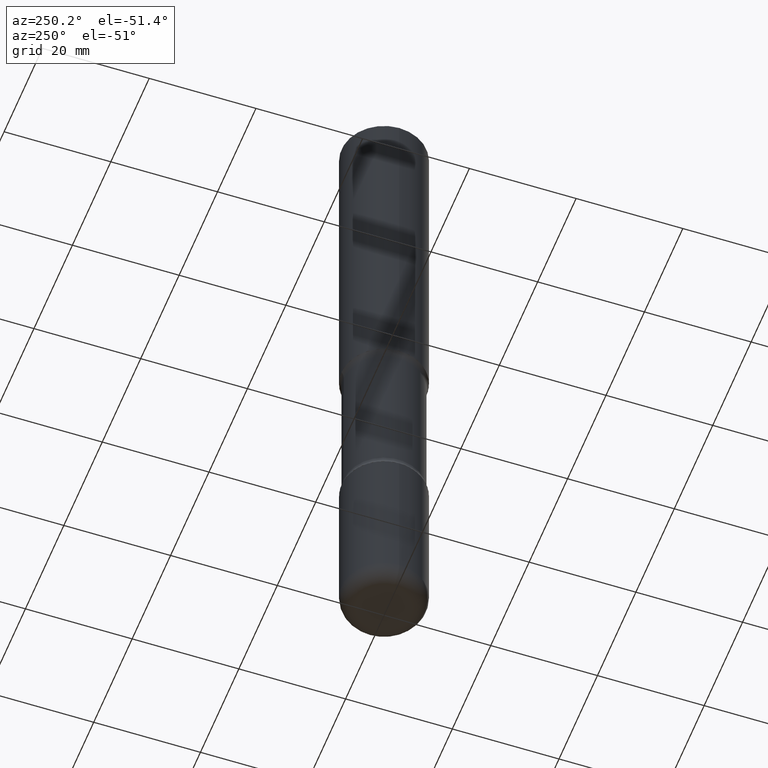
[diagram: clean part render]
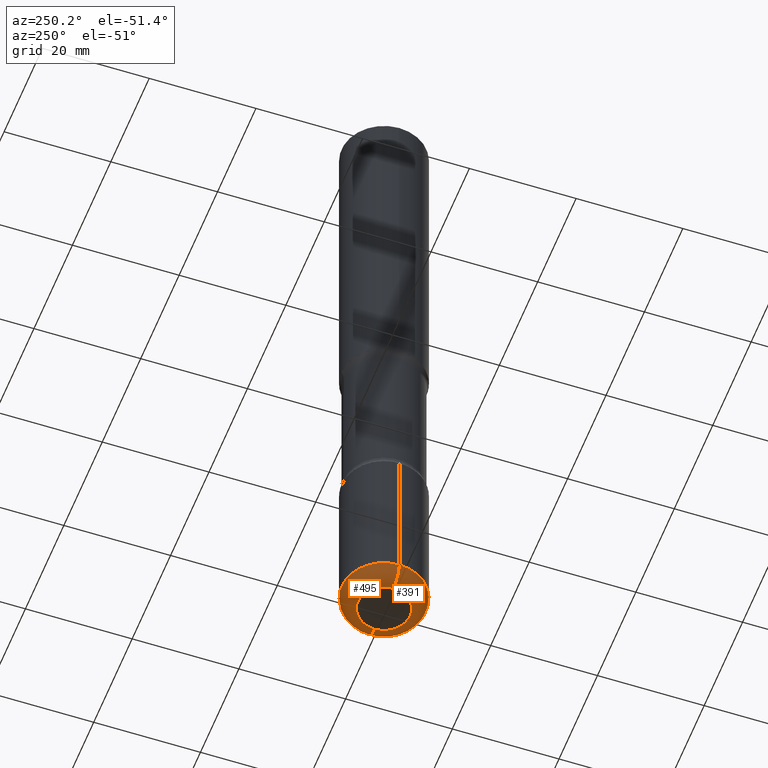
[diagram: same view with one multi-face feature highlighted, each face labeled with its STEP entity id]
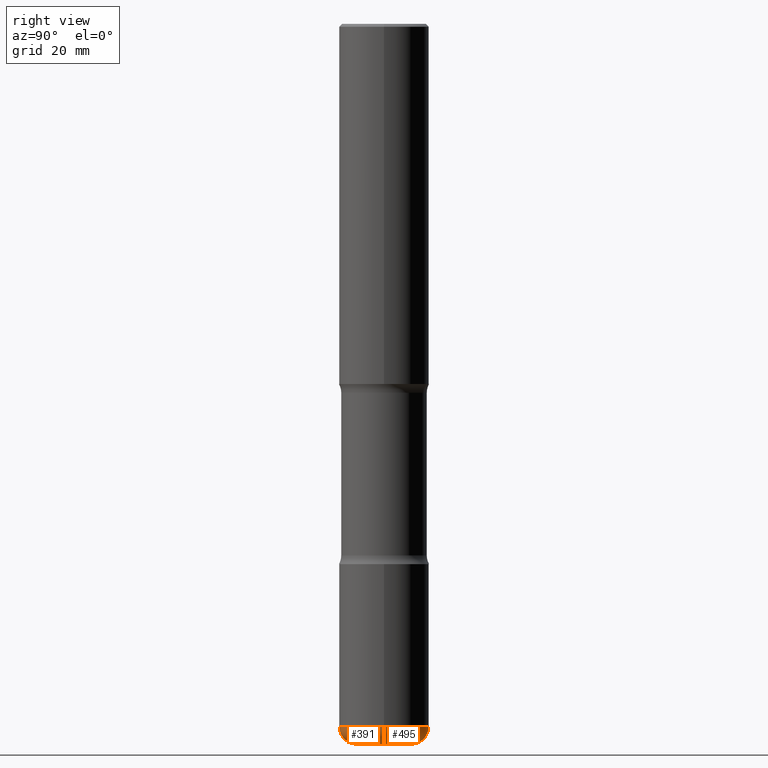
[diagram: same view with one multi-face feature highlighted, each face labeled with its STEP entity id]
A machine part, auxiliary view. The highlighted faces form ONE feature: a constant-radius fillet chain: 2 tangent blend faces with common blend radius 3.048 mm. The faces share edges in the B-rep.
A second angle (right view) of the same feature is appended — it is thin or edge-on in the first view.
Their STEP definitions:
[1] entity #391 (Torus):
#9 = DIRECTION ( 'NONE',  ( 7.105427357601001859E-15, 1.000000000000000000, -3.491481338843145583E-15 ) ) ;
#29 = DIRECTION ( 'NONE',  ( -2.445468806185136597E-29, 3.491481338843145583E-15, 1.000000000000000000 ) ) ;
#31 = DIRECTION ( 'NONE',  ( -2.445468806185136597E-29, 3.491481338843145583E-15, 1.000000000000000000 ) ) ;
#36 = DIRECTION ( 'NONE',  ( 1.000000000000000000, -6.982962677686258822E-15, 0.000000000000000000 ) ) ;
#39 = CARTESIAN_POINT ( 'NONE',  ( -0.1925000000000002820, -1.545379740609088424E-14, -5.000000000000000000 ) ) ;
#82 = EDGE_CURVE ( 'NONE', #444, #208, #273, .T. ) ;
#84 = VERTEX_POINT ( 'NONE', #451 ) ;
#90 = FACE_OUTER_BOUND ( 'NONE', #432, .T. ) ;
#94 = VERTEX_POINT ( 'NONE', #39 ) ;
#106 = CIRCLE ( 'NONE', #500, 0.1925000000000002820 ) ;
#109 = EDGE_CURVE ( 'NONE', #84, #208, #355, .T. ) ;
#112 = DIRECTION ( 'NONE',  ( -6.982962677686266711E-15, -1.000000000000000000, 3.491481338843145583E-15 ) ) ;
#114 = AXIS2_PLACEMENT_3D ( 'NONE', #367, #112, #280 ) ;
#134 = ORIENTED_EDGE ( 'NONE', *, *, #240, .T. ) ;
#144 = DIRECTION ( 'NONE',  ( -1.000000000000000000, 7.105427357600997914E-15, 0.000000000000000000 ) ) ;
#154 = ORIENTED_EDGE ( 'NONE', *, *, #109, .F. ) ;
#160 = DIRECTION ( 'NONE',  ( 1.000000000000000000, -6.982962677686269077E-15, 0.000000000000000000 ) ) ;
#167 = ORIENTED_EDGE ( 'NONE', *, *, #82, .T. ) ;
#172 = CIRCLE ( 'NONE', #258, 0.1199999999999998845 ) ;
#176 = ORIENTED_EDGE ( 'NONE', *, *, #542, .F. ) ;
#208 = VERTEX_POINT ( 'NONE', #210 ) ;
#210 = CARTESIAN_POINT ( 'NONE',  ( 0.3125000000000002220, -1.922060477033151318E-14, -4.880000000000000782 ) ) ;
#214 = CARTESIAN_POINT ( 'NONE',  ( 1.193388777418346668E-28, -1.703842893355455010E-14, -4.880000000000000782 ) ) ;
#240 = EDGE_CURVE ( 'NONE', #94, #444, #106, .T. ) ;
#258 = AXIS2_PLACEMENT_3D ( 'NONE', #490, #9, #144 ) ;
#262 = DIRECTION ( 'NONE',  ( -2.445468806185136597E-29, 3.491481338843145583E-15, 1.000000000000000000 ) ) ;
#273 = CIRCLE ( 'NONE', #114, 0.1199999999999998845 ) ;
#280 = DIRECTION ( 'NONE',  ( 1.000000000000000000, -6.982962677686274599E-15, 0.000000000000000000 ) ) ;
#341 = CARTESIAN_POINT ( 'NONE',  ( 1.193388777418346668E-28, -1.703842893355455010E-14, -4.880000000000000782 ) ) ;
#355 = CIRCLE ( 'NONE', #462, 0.3125000000000002776 ) ;
#367 = CARTESIAN_POINT ( 'NONE',  ( 0.1925000000000002820, -1.838264924900915991E-14, -4.880000000000000782 ) ) ;
#391 = ADVANCED_FACE ( 'NONE', ( #90 ), #473, .T. ) ;
#432 = EDGE_LOOP ( 'NONE', ( #176, #134, #167, #154 ) ) ;
#433 = DIRECTION ( 'NONE',  ( 1.000000000000000000, -6.982962677686272233E-15, 4.883557194083114583E-29 ) ) ;
#444 = VERTEX_POINT ( 'NONE', #517 ) ;
#451 = CARTESIAN_POINT ( 'NONE',  ( -0.3125000000000002220, -1.481798288430423702E-14, -4.880000000000000782 ) ) ;
#462 = AXIS2_PLACEMENT_3D ( 'NONE', #214, #31, #160 ) ;
#473 = TOROIDAL_SURFACE ( 'NONE', #513, 0.1925000000000002820, 0.1199999999999999123 ) ;
#490 = CARTESIAN_POINT ( 'NONE',  ( -0.1925000000000002820, -1.567063416721635800E-14, -4.880000000000000782 ) ) ;
#500 = AXIS2_PLACEMENT_3D ( 'NONE', #509, #29, #36 ) ;
#509 = CARTESIAN_POINT ( 'NONE',  ( 1.222734403092568523E-28, -1.745740669421572989E-14, -5.000000000000000000 ) ) ;
#513 = AXIS2_PLACEMENT_3D ( 'NONE', #341, #262, #433 ) ;
#517 = CARTESIAN_POINT ( 'NONE',  ( 0.1925000000000002820, -1.880162700967033654E-14, -5.000000000000000000 ) ) ;
#542 = EDGE_CURVE ( 'NONE', #94, #84, #172, .T. ) ;
[2] entity #495 (Torus):
#7 = DIRECTION ( 'NONE',  ( -2.445468806185136597E-29, 3.491481338843145583E-15, 1.000000000000000000 ) ) ;
#9 = DIRECTION ( 'NONE',  ( 7.105427357601001859E-15, 1.000000000000000000, -3.491481338843145583E-15 ) ) ;
#39 = CARTESIAN_POINT ( 'NONE',  ( -0.1925000000000002820, -1.545379740609088424E-14, -5.000000000000000000 ) ) ;
#48 = DIRECTION ( 'NONE',  ( 1.000000000000000000, -6.982962677686269077E-15, 0.000000000000000000 ) ) ;
#82 = EDGE_CURVE ( 'NONE', #444, #208, #273, .T. ) ;
#84 = VERTEX_POINT ( 'NONE', #451 ) ;
#87 = AXIS2_PLACEMENT_3D ( 'NONE', #191, #269, #405 ) ;
#94 = VERTEX_POINT ( 'NONE', #39 ) ;
#107 = AXIS2_PLACEMENT_3D ( 'NONE', #133, #7, #48 ) ;
#108 = ORIENTED_EDGE ( 'NONE', *, *, #82, .F. ) ;
#112 = DIRECTION ( 'NONE',  ( -6.982962677686266711E-15, -1.000000000000000000, 3.491481338843145583E-15 ) ) ;
#114 = AXIS2_PLACEMENT_3D ( 'NONE', #367, #112, #280 ) ;
#133 = CARTESIAN_POINT ( 'NONE',  ( 1.193388777418346668E-28, -1.703842893355455010E-14, -4.880000000000000782 ) ) ;
#144 = DIRECTION ( 'NONE',  ( -1.000000000000000000, 7.105427357600997914E-15, 0.000000000000000000 ) ) ;
#171 = ORIENTED_EDGE ( 'NONE', *, *, #542, .T. ) ;
#172 = CIRCLE ( 'NONE', #258, 0.1199999999999998845 ) ;
#174 = ORIENTED_EDGE ( 'NONE', *, *, #558, .T. ) ;
#191 = CARTESIAN_POINT ( 'NONE',  ( 1.222734403092568523E-28, -1.745740669421572989E-14, -5.000000000000000000 ) ) ;
#208 = VERTEX_POINT ( 'NONE', #210 ) ;
#210 = CARTESIAN_POINT ( 'NONE',  ( 0.3125000000000002220, -1.922060477033151318E-14, -4.880000000000000782 ) ) ;
#224 = TOROIDAL_SURFACE ( 'NONE', #293, 0.1925000000000002820, 0.1199999999999999123 ) ;
#258 = AXIS2_PLACEMENT_3D ( 'NONE', #490, #9, #144 ) ;
#269 = DIRECTION ( 'NONE',  ( -2.445468806185136597E-29, 3.491481338843145583E-15, 1.000000000000000000 ) ) ;
#273 = CIRCLE ( 'NONE', #114, 0.1199999999999998845 ) ;
#280 = DIRECTION ( 'NONE',  ( 1.000000000000000000, -6.982962677686274599E-15, 0.000000000000000000 ) ) ;
#293 = AXIS2_PLACEMENT_3D ( 'NONE', #360, #312, #540 ) ;
#312 = DIRECTION ( 'NONE',  ( -2.445468806185136597E-29, 3.491481338843145583E-15, 1.000000000000000000 ) ) ;
#320 = FACE_OUTER_BOUND ( 'NONE', #354, .T. ) ;
#346 = CIRCLE ( 'NONE', #107, 0.3125000000000002776 ) ;
#354 = EDGE_LOOP ( 'NONE', ( #174, #171, #480, #108 ) ) ;
#360 = CARTESIAN_POINT ( 'NONE',  ( 1.193388777418346668E-28, -1.703842893355455010E-14, -4.880000000000000782 ) ) ;
#365 = CIRCLE ( 'NONE', #87, 0.1925000000000002820 ) ;
#367 = CARTESIAN_POINT ( 'NONE',  ( 0.1925000000000002820, -1.838264924900915991E-14, -4.880000000000000782 ) ) ;
#374 = EDGE_CURVE ( 'NONE', #208, #84, #346, .T. ) ;
#405 = DIRECTION ( 'NONE',  ( 1.000000000000000000, -6.982962677686258822E-15, 0.000000000000000000 ) ) ;
#444 = VERTEX_POINT ( 'NONE', #517 ) ;
#451 = CARTESIAN_POINT ( 'NONE',  ( -0.3125000000000002220, -1.481798288430423702E-14, -4.880000000000000782 ) ) ;
#480 = ORIENTED_EDGE ( 'NONE', *, *, #374, .F. ) ;
#490 = CARTESIAN_POINT ( 'NONE',  ( -0.1925000000000002820, -1.567063416721635800E-14, -4.880000000000000782 ) ) ;
#495 = ADVANCED_FACE ( 'NONE', ( #320 ), #224, .T. ) ;
#517 = CARTESIAN_POINT ( 'NONE',  ( 0.1925000000000002820, -1.880162700967033654E-14, -5.000000000000000000 ) ) ;
#540 = DIRECTION ( 'NONE',  ( 1.000000000000000000, -6.982962677686272233E-15, 4.883557194083114583E-29 ) ) ;
#542 = EDGE_CURVE ( 'NONE', #94, #84, #172, .T. ) ;
#558 = EDGE_CURVE ( 'NONE', #444, #94, #365, .T. ) ;